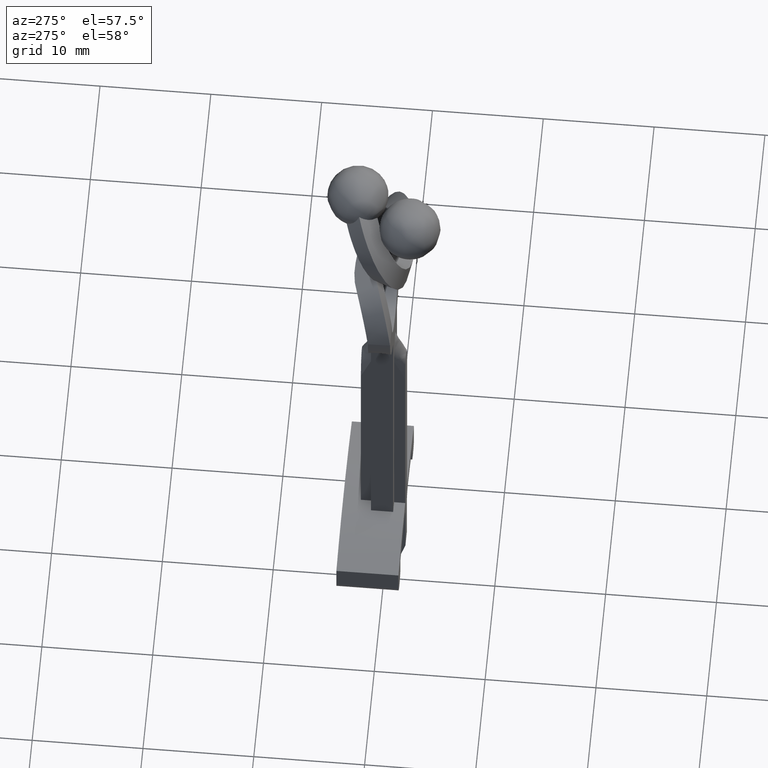
[diagram: clean part render]
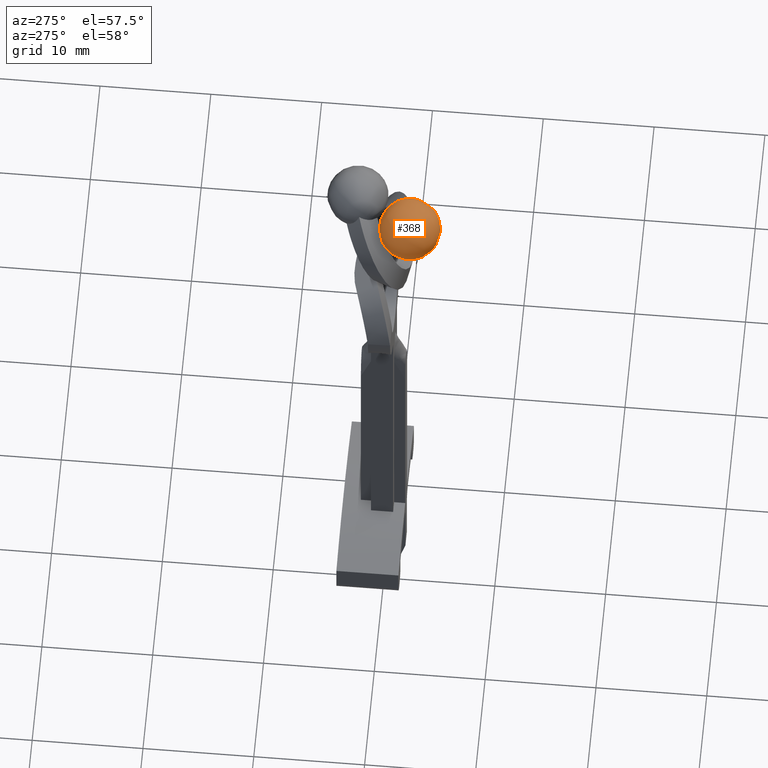
[diagram: same view with one face highlighted and labeled with its STEP entity id]
A machine part, auxiliary view. The second image highlights one B-rep face of the part: STEP entity #368.
In plain terms, the highlighted face is a freeform B-spline surface patch.
Its self-contained STEP definition (entity closure, byte-faithful):
#246=CARTESIAN_POINT('',(1.127748831282746,-2.361085233733501,13.541435205540360));
#247=CARTESIAN_POINT('',(1.154891302421972,-2.365685170347951,13.700541791719427));
#248=CARTESIAN_POINT('',(1.160150877305104,-2.139048842365470,14.072252532736496));
#249=CARTESIAN_POINT('',(1.037419724128653,-1.607153509312954,14.118532318190011));
#250=CARTESIAN_POINT('',(0.919296302034148,-1.346204881974399,13.787062572546070));
#251=CARTESIAN_POINT('',(0.890721899041967,-1.337303936022932,13.625642292372648));
#252=CARTESIAN_POINT('',(1.134028390686172,-2.521939617728275,13.535713489348273));
#253=CARTESIAN_POINT('',(1.175509136866625,-2.597658750737427,13.760586431502118));
#254=CARTESIAN_POINT('',(1.204376770107347,-2.399669709568142,14.496539173982852));
#255=CARTESIAN_POINT('',(0.979888109627227,-1.426775153114991,14.581189947440762));
#256=CARTESIAN_POINT('',(0.839252652339121,-1.141945424658657,13.883769072268320));
#257=CARTESIAN_POINT('',(0.826690900304396,-1.192875779967350,13.644940950320047));
#258=CARTESIAN_POINT('',(1.062115448623879,-2.876960312421899,13.295621667601223));
#259=CARTESIAN_POINT('',(1.082532716310492,-3.318120272418200,13.530688711597584));
#260=CARTESIAN_POINT('',(0.220686278918953,-10.378843648871040,21.287040723894361));
#261=CARTESIAN_POINT('',(-3.119212360511378,4.095692385410318,22.546458471294759));
#262=CARTESIAN_POINT('',(0.436385198001763,-0.511074463807058,13.769689472326947));
#263=CARTESIAN_POINT('',(0.602366430658300,-0.876901587050165,13.463762502114227));
#264=CARTESIAN_POINT('',(0.869119394404189,-2.876960312421899,12.783807966202874));
#265=CARTESIAN_POINT('',(0.729243275962183,-3.318120272418200,12.593786779272113));
#266=CARTESIAN_POINT('',(-5.039379274407733,-10.378843648871040,7.337669420263824));
#267=CARTESIAN_POINT('',(-8.379277913838063,4.095692385410318,8.597087167664222));
#268=CARTESIAN_POINT('',(0.086166215980441,-0.511074463807058,12.840930207206148));
#269=CARTESIAN_POINT('',(0.412818706220131,-0.876901587050165,12.961093559847145));
#270=CARTESIAN_POINT('',(0.763663037616921,-2.518757695961813,12.553969886472288));
#271=CARTESIAN_POINT('',(0.646701008825549,-2.592624785200471,12.358103226160209));
#272=CARTESIAN_POINT('',(0.187729633791799,-2.392473320695001,11.791976213687965));
#273=CARTESIAN_POINT('',(-0.033949249400805,-1.431755847137811,11.875567468949610));
#274=CARTESIAN_POINT('',(0.314997868762606,-1.146372098248553,12.486781432572359));
#275=CARTESIAN_POINT('',(0.462102978042914,-1.195725072441620,12.674345456430913));
#276=CARTESIAN_POINT('',(0.755747824000425,-2.353985477417000,12.555898915799519));
#277=CARTESIAN_POINT('',(0.672423877281310,-2.356407120344298,12.420853089217321));
#278=CARTESIAN_POINT('',(0.437633527276110,-2.130976932454681,12.146672396601605));
#279=CARTESIAN_POINT('',(0.318053992158940,-1.612740160361711,12.191763761643193));
#280=CARTESIAN_POINT('',(0.442358187279385,-1.354386008343662,12.509876585427810));
#281=CARTESIAN_POINT('',(0.525203053620783,-1.343697017929799,12.647938037343661));
#289=(BOUNDED_SURFACE()B_SPLINE_SURFACE(2,2,((#246,#252,#258,#264,#270,#276),(#247,#253,#259,#265,#271,#277),(#248,#254,#260,#266,#272,#278),(#249,#255,#261,#267,#273,#279),(#250,#256,#262,#268,#274,#280),(#251,#257,#263,#269,#275,#281)),.UNSPECIFIED.,.F.,.F.,.U.)B_SPLINE_SURFACE_WITH_KNOTS((3,1,1,1,3),(3,1,1,1,3),(0.0,2.840101865945996,6.029963386487793,9.219824907029590,12.116599370094850),(0.0,2.835316562646516,6.025178083188314,9.215039603730110,12.132228192964931),.UNSPECIFIED.)GEOMETRIC_REPRESENTATION_ITEM()RATIONAL_B_SPLINE_SURFACE(((53.467911350417317,41.132588426950662,27.254782874157058,27.254782874157058,41.321164440724573,54.185135974775399),(41.101956028368143,28.766633104901469,14.888827552107880,14.888827552107880,28.955209118675398,41.819180652726232),(27.213128476260259,14.877805552793600,1.0,1.0,15.066381566567520,27.930353100618358),(27.213128476260259,14.877805552793600,1.0,1.0,15.066381566567520,27.930353100618358),(41.232490142403293,28.897167218936630,15.019361666143030,15.019361666143030,29.085743232710549,41.949714766761382),(53.963741515366173,41.628418591899496,27.750613039105911,27.750613039105911,41.816994605673429,54.680966139724248)))REPRESENTATION_ITEM('')SURFACE());
#290=CARTESIAN_POINT('',(1.086899371842424,-2.141053710324115,14.572527605981840));
#291=VERTEX_POINT('',#290);
#292=CARTESIAN_POINT('',(0.824357974892849,-3.292493974763335,12.940894711433980));
#293=VERTEX_POINT('',#292);
#294=CARTESIAN_POINT('',(1.086899371842424,-2.141053710324115,14.572527605981840));
#295=CARTESIAN_POINT('',(1.128868890140672,-2.206630633446335,14.416138136690011));
#296=CARTESIAN_POINT('',(1.154386963714786,-2.280023216234333,14.262000190461229));
#297=CARTESIAN_POINT('',(1.168968401908317,-2.403239667463355,14.035002040794820));
#298=CARTESIAN_POINT('',(1.169846898277576,-2.446511518596353,13.960039983841620));
#299=CARTESIAN_POINT('',(1.165000366902754,-2.515020022954722,13.848787659570389));
#300=CARTESIAN_POINT('',(1.162348217340399,-2.538443704237354,13.811934022496610));
#301=CARTESIAN_POINT('',(1.155054424934876,-2.585929233409436,13.739562684348069));
#302=CARTESIAN_POINT('',(1.150409354202682,-2.610062018991277,13.703927870847210));
#303=CARTESIAN_POINT('',(1.122282633749848,-2.732686812351268,13.528493753921159));
#304=CARTESIAN_POINT('',(1.084277678843706,-2.837049239171132,13.396859358499229));
#305=CARTESIAN_POINT('',(1.017001344101504,-2.975647800990577,13.243549325895181));
#306=CARTESIAN_POINT('',(1.002506444101977,-3.003845043823161,13.213382787173661));
#307=CARTESIAN_POINT('',(0.971727773852038,-3.060583246814606,13.154691489078781));
#308=CARTESIAN_POINT('',(0.955437313452087,-3.089147038317711,13.126135935464321));
#309=CARTESIAN_POINT('',(0.903879479745280,-3.175390838799064,13.042795177584351));
#310=CARTESIAN_POINT('',(0.865934028929947,-3.233625181203471,12.990332456913260));
#311=CARTESIAN_POINT('',(0.824357974892850,-3.292493974763335,12.940894711433980));
#312=B_SPLINE_CURVE_WITH_KNOTS('',3,(#294,#295,#296,#297,#298,#299,#300,#301,#302,#303,#304,#305,#306,#307,#308,#309,#310,#311),.UNSPECIFIED.,.F.,.U.,(4,2,2,2,2,2,2,2,4),(0.0,0.250000000000001,0.375000000000002,0.437500000000003,0.500000000000003,0.750000000000001,0.812500000000000,0.874999999999999,1.0),.UNSPECIFIED.);
#313=EDGE_CURVE('',#291,#293,#312,.T.);
#314=ORIENTED_EDGE('',*,*,#313,.F.);
#315=CARTESIAN_POINT('',(0.336110365323622,-0.567834350926394,13.532260087279081));
#316=VERTEX_POINT('',#315);
#317=CARTESIAN_POINT('',(0.336110365323622,-0.567834350926394,13.532260087279081));
#318=CARTESIAN_POINT('',(0.398589567649774,-0.624116345356223,13.557877177786411));
#319=CARTESIAN_POINT('',(0.457573975062271,-0.682287663003054,13.586142322051410));
#320=CARTESIAN_POINT('',(0.568647410310755,-0.802286006812635,13.648037283244451));
#321=CARTESIAN_POINT('',(0.620811194200533,-0.864211448339429,13.681722440710240));
#322=CARTESIAN_POINT('',(0.766285952249357,-1.054930082150758,13.790699846803619));
#323=CARTESIAN_POINT('',(0.846468765770793,-1.185580431583592,13.872109802434970));
#324=CARTESIAN_POINT('',(0.942514123257248,-1.386846216252342,14.006489550113921));
#325=CARTESIAN_POINT('',(0.970456936710972,-1.454828294433420,14.053337536390810));
#326=CARTESIAN_POINT('',(1.017946200195297,-1.592723789822313,14.151131747161950));
#327=CARTESIAN_POINT('',(1.037158174495114,-1.661718760209371,14.201430226524710));
#328=CARTESIAN_POINT('',(1.081308418543315,-1.867788371226458,14.355259262508371));
#329=CARTESIAN_POINT('',(1.093089277523023,-2.004488032194229,14.462084544997641));
#330=CARTESIAN_POINT('',(1.086899371842424,-2.141053710324115,14.572527605981840));
#331=B_SPLINE_CURVE_WITH_KNOTS('',3,(#317,#318,#319,#320,#321,#322,#323,#324,#325,#326,#327,#328,#329,#330),.UNSPECIFIED.,.F.,.U.,(4,2,2,2,2,2,4),(0.0,0.125000000000001,0.250000000000001,0.500000000000001,0.625000000000001,0.750000000000001,1.0),.UNSPECIFIED.);
#332=EDGE_CURVE('',#316,#291,#331,.T.);
#333=ORIENTED_EDGE('',*,*,#332,.F.);
#334=CARTESIAN_POINT('',(0.032097557430013,-1.725973218598905,11.905456973518200));
#335=VERTEX_POINT('',#334);
#336=CARTESIAN_POINT('',(0.032097557430013,-1.725973218598905,11.905456973518200));
#337=CARTESIAN_POINT('',(0.108406045346608,-1.607618371397810,12.007010340122109));
#338=CARTESIAN_POINT('',(0.172534902811599,-1.492767326803297,12.119339154865990));
#339=CARTESIAN_POINT('',(0.277080948823909,-1.271446272414717,12.365392991623001));
#340=CARTESIAN_POINT('',(0.316266247905243,-1.167561397088007,12.496193396279221));
#341=CARTESIAN_POINT('',(0.355850450026636,-1.021174888549574,12.703432727151350));
#342=CARTESIAN_POINT('',(0.365815845047893,-0.973956154780938,12.774361280497770));
#343=CARTESIAN_POINT('',(0.379003757047613,-0.882597430747541,12.919923015632479));
#344=CARTESIAN_POINT('',(0.382203539392053,-0.838302895350297,12.994861486865430));
#345=CARTESIAN_POINT('',(0.381031560718085,-0.712109759725524,13.221375850157610));
#346=CARTESIAN_POINT('',(0.366197790526676,-0.636232101644403,13.375502267793079));
#347=CARTESIAN_POINT('',(0.336110365323622,-0.567834350926394,13.532260087279081));
#348=B_SPLINE_CURVE_WITH_KNOTS('',3,(#336,#337,#338,#339,#340,#341,#342,#343,#344,#345,#346,#347),.UNSPECIFIED.,.F.,.U.,(4,2,2,2,2,4),(0.0,0.249999999999999,0.499999999999998,0.624999999999998,0.749999999999999,1.0),.UNSPECIFIED.);
#349=EDGE_CURVE('',#335,#316,#348,.T.);
#350=ORIENTED_EDGE('',*,*,#349,.F.);
#351=CARTESIAN_POINT('',(0.824357974892849,-3.292493974763335,12.940894711433980));
#352=CARTESIAN_POINT('',(0.821632494310974,-3.155549591331353,12.830054148234630));
#353=CARTESIAN_POINT('',(0.801461699658065,-3.019740992194336,12.723968785239940));
#354=CARTESIAN_POINT('',(0.729197759465720,-2.749107330197066,12.521972224946690));
#355=CARTESIAN_POINT('',(0.677091867214526,-2.614289576675213,12.426055785054050));
#356=CARTESIAN_POINT('',(0.539831458248977,-2.344721399132103,12.246035324406300));
#357=CARTESIAN_POINT('',(0.456946656584237,-2.214479299700575,12.164982277574079));
#358=CARTESIAN_POINT('',(0.312785266285157,-2.025972050544431,12.057161538286181));
#359=CARTESIAN_POINT('',(0.261376024552779,-1.964249965860321,12.023497967218249));
#360=CARTESIAN_POINT('',(0.151696734641919,-1.843085295905826,11.960821772500760));
#361=CARTESIAN_POINT('',(0.093305312026673,-1.783553957328404,11.931780534942691));
#362=CARTESIAN_POINT('',(0.032097557430013,-1.725973218598905,11.905456973518200));
#363=B_SPLINE_CURVE_WITH_KNOTS('',3,(#351,#352,#353,#354,#355,#356,#357,#358,#359,#360,#361,#362),.UNSPECIFIED.,.F.,.U.,(4,2,2,2,2,4),(0.0,0.250000000000000,0.500000000000000,0.750000000000000,0.875000000000000,1.0),.UNSPECIFIED.);
#364=EDGE_CURVE('',#293,#335,#363,.T.);
#365=ORIENTED_EDGE('',*,*,#364,.F.);
#366=EDGE_LOOP('',(#314,#333,#350,#365));
#367=FACE_OUTER_BOUND('',#366,.T.);
#368=ADVANCED_FACE('',(#367),#289,.T.);